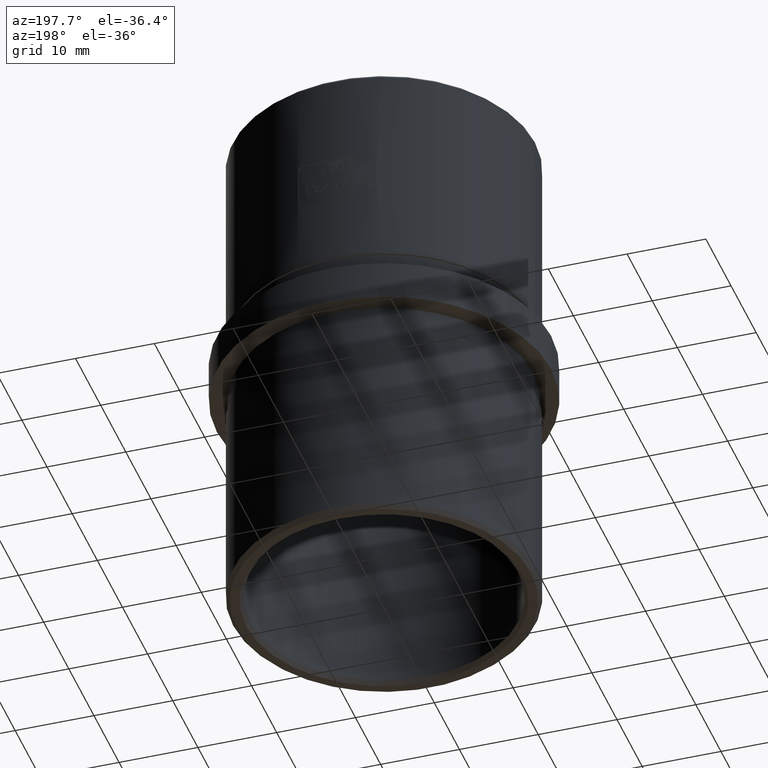
[diagram: clean part render]
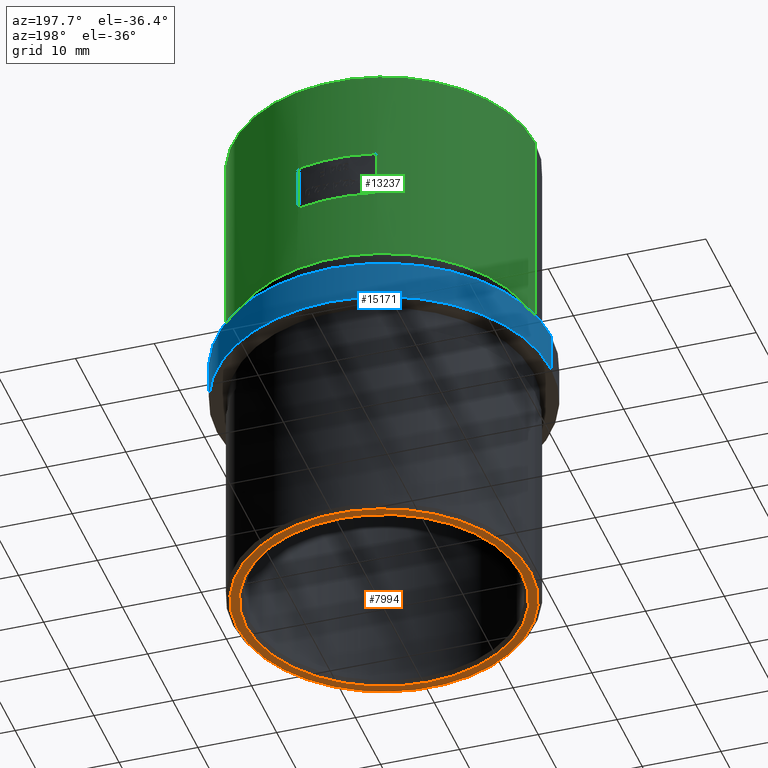
[diagram: same view with three faces highlighted in distinct colors, each labeled with its STEP entity id]
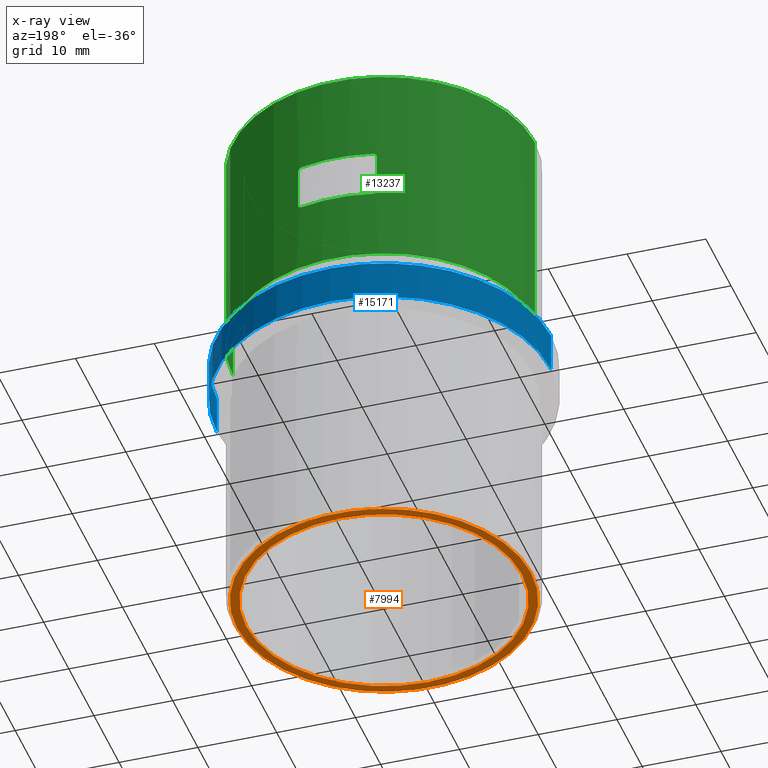
[diagram: x-ray of the same camera — body ghosted, the three highlighted faces saturated]
A machine part, auxiliary view with three faces highlighted in distinct colors.
The next image is the same camera in x-ray (body ghosted, the three faces saturated) — at least one of them is partly hidden behind the body in this view.
Their STEP definitions:

[orange] entity #7994 — the highlighted planar face has unit normal (0, 0, -1).
#163 = AXIS2_PLACEMENT_3D ( 'NONE', #2416, #13437, #15010 ) ;
#888 = CARTESIAN_POINT ( 'NONE',  ( 17.49999999999999600, 2.143131898507867500E-015, -32.50000000000000000 ) ) ;
#1364 = EDGE_CURVE ( 'NONE', #19655, #13010, #20067, .T. ) ;
#2416 = CARTESIAN_POINT ( 'NONE',  ( 0.0000000000000000000, 0.0000000000000000000, -32.50000000000000000 ) ) ;
#2832 = ORIENTED_EDGE ( 'NONE', *, *, #16695, .T. ) ;
#3154 = VERTEX_POINT ( 'NONE', #9685 ) ;
#3708 = DIRECTION ( 'NONE',  ( -0.0000000000000000000, -0.0000000000000000000, 1.000000000000000000 ) ) ;
#4027 = DIRECTION ( 'NONE',  ( -1.000000000000000000, 0.0000000000000000000, 0.0000000000000000000 ) ) ;
#4387 = CARTESIAN_POINT ( 'NONE',  ( 18.64999999999999900, 0.0000000000000000000, -32.50000000000000000 ) ) ;
#4685 = CIRCLE ( 'NONE', #6483, 17.49999999999999600 ) ;
#5186 = CARTESIAN_POINT ( 'NONE',  ( 0.0000000000000000000, 0.0000000000000000000, -32.50000000000000000 ) ) ;
#5858 = AXIS2_PLACEMENT_3D ( 'NONE', #5186, #19386, #19318 ) ;
#6100 = DIRECTION ( 'NONE',  ( -0.0000000000000000000, -0.0000000000000000000, 1.000000000000000000 ) ) ;
#6127 = DIRECTION ( 'NONE',  ( 1.000000000000000000, 0.0000000000000000000, 0.0000000000000000000 ) ) ;
#6483 = AXIS2_PLACEMENT_3D ( 'NONE', #14726, #3708, #10012 ) ;
#7459 = FACE_OUTER_BOUND ( 'NONE', #14191, .T. ) ;
#7624 = VERTEX_POINT ( 'NONE', #888 ) ;
#7994 = ADVANCED_FACE ( 'NONE', ( #7459, #17001 ), #18478, .T. ) ;
#8927 = EDGE_LOOP ( 'NONE', ( #18075, #14172 ) ) ;
#9277 = AXIS2_PLACEMENT_3D ( 'NONE', #15485, #6100, #4027 ) ;
#9685 = CARTESIAN_POINT ( 'NONE',  ( -17.49999999999999600, 0.0000000000000000000, -32.50000000000000000 ) ) ;
#10012 = DIRECTION ( 'NONE',  ( -1.000000000000000000, 0.0000000000000000000, 0.0000000000000000000 ) ) ;
#11045 = ORIENTED_EDGE ( 'NONE', *, *, #1364, .T. ) ;
#13010 = VERTEX_POINT ( 'NONE', #19532 ) ;
#13437 = DIRECTION ( 'NONE',  ( 0.0000000000000000000, 0.0000000000000000000, -1.000000000000000000 ) ) ;
#13871 = DIRECTION ( 'NONE',  ( 0.0000000000000000000, 0.0000000000000000000, -1.000000000000000000 ) ) ;
#13943 = CARTESIAN_POINT ( 'NONE',  ( 0.0000000000000000000, 0.0000000000000000000, -32.50000000000000000 ) ) ;
#14051 = EDGE_CURVE ( 'NONE', #3154, #7624, #4685, .T. ) ;
#14172 = ORIENTED_EDGE ( 'NONE', *, *, #18799, .T. ) ;
#14191 = EDGE_LOOP ( 'NONE', ( #11045, #2832 ) ) ;
#14726 = CARTESIAN_POINT ( 'NONE',  ( 0.0000000000000000000, 0.0000000000000000000, -32.50000000000000000 ) ) ;
#14827 = CIRCLE ( 'NONE', #9277, 17.49999999999999600 ) ;
#15010 = DIRECTION ( 'NONE',  ( -1.000000000000000000, 0.0000000000000000000, 0.0000000000000000000 ) ) ;
#15485 = CARTESIAN_POINT ( 'NONE',  ( 0.0000000000000000000, 0.0000000000000000000, -32.50000000000000000 ) ) ;
#16695 = EDGE_CURVE ( 'NONE', #13010, #19655, #17216, .T. ) ;
#17001 = FACE_BOUND ( 'NONE', #8927, .T. ) ;
#17216 = CIRCLE ( 'NONE', #5858, 18.64999999999999900 ) ;
#18075 = ORIENTED_EDGE ( 'NONE', *, *, #14051, .T. ) ;
#18478 = PLANE ( 'NONE',  #18577 ) ;
#18577 = AXIS2_PLACEMENT_3D ( 'NONE', #13943, #13871, #6127 ) ;
#18799 = EDGE_CURVE ( 'NONE', #7624, #3154, #14827, .T. ) ;
#19318 = DIRECTION ( 'NONE',  ( -1.000000000000000000, 0.0000000000000000000, 0.0000000000000000000 ) ) ;
#19386 = DIRECTION ( 'NONE',  ( 0.0000000000000000000, 0.0000000000000000000, -1.000000000000000000 ) ) ;
#19532 = CARTESIAN_POINT ( 'NONE',  ( -18.64999999999999900, 2.314582450388497600E-015, -32.50000000000000000 ) ) ;
#19655 = VERTEX_POINT ( 'NONE', #4387 ) ;
#20067 = CIRCLE ( 'NONE', #163, 18.64999999999999900 ) ;

[blue] entity #15171 — the highlighted cylindrical surface (partial cylindrical patch) has radius 21.2 mm, axis along (-0, -0, -1).
#1412 = EDGE_CURVE ( 'NONE', #4165, #16879, #7139, .T. ) ;
#1602 = CIRCLE ( 'NONE', #4973, 21.19999999999999900 ) ;
#1772 = DIRECTION ( 'NONE',  ( -0.0000000000000000000, -0.0000000000000000000, -1.000000000000000000 ) ) ;
#1822 = VECTOR ( 'NONE', #8139, 1000.000000000000000 ) ;
#1911 = CARTESIAN_POINT ( 'NONE',  ( -21.19999999999999900, 0.0000000000000000000, 2.500000000000000000 ) ) ;
#2242 = CARTESIAN_POINT ( 'NONE',  ( 21.19999999999999900, 2.596251214192388800E-015, -2.500000000000000000 ) ) ;
#3396 = DIRECTION ( 'NONE',  ( -1.000000000000000000, 0.0000000000000000000, 0.0000000000000000000 ) ) ;
#4079 = ORIENTED_EDGE ( 'NONE', *, *, #1412, .F. ) ;
#4165 = VERTEX_POINT ( 'NONE', #17107 ) ;
#4546 = CYLINDRICAL_SURFACE ( 'NONE', #5442, 21.19999999999999900 ) ;
#4605 = DIRECTION ( 'NONE',  ( 1.000000000000000000, 0.0000000000000000000, 0.0000000000000000000 ) ) ;
#4973 = AXIS2_PLACEMENT_3D ( 'NONE', #11043, #10980, #4605 ) ;
#5442 = AXIS2_PLACEMENT_3D ( 'NONE', #9905, #13052, #3396 ) ;
#6554 = CARTESIAN_POINT ( 'NONE',  ( 21.19999999999999900, 2.596251214192388800E-015, 2.500000000000000000 ) ) ;
#7139 = CIRCLE ( 'NONE', #18580, 21.19999999999999900 ) ;
#7718 = EDGE_LOOP ( 'NONE', ( #4079, #18522, #14158, #15644 ) ) ;
#8139 = DIRECTION ( 'NONE',  ( -0.0000000000000000000, -0.0000000000000000000, -1.000000000000000000 ) ) ;
#8610 = EDGE_CURVE ( 'NONE', #19201, #14428, #1602, .T. ) ;
#8638 = DIRECTION ( 'NONE',  ( 1.000000000000000000, 0.0000000000000000000, 0.0000000000000000000 ) ) ;
#9760 = CARTESIAN_POINT ( 'NONE',  ( -21.19999999999999900, 0.0000000000000000000, -2.500000000000000000 ) ) ;
#9793 = EDGE_CURVE ( 'NONE', #4165, #19201, #14534, .T. ) ;
#9905 = CARTESIAN_POINT ( 'NONE',  ( 0.0000000000000000000, 0.0000000000000000000, 2.500000000000000000 ) ) ;
#10149 = EDGE_CURVE ( 'NONE', #16879, #14428, #11854, .T. ) ;
#10980 = DIRECTION ( 'NONE',  ( -0.0000000000000000000, -0.0000000000000000000, 1.000000000000000000 ) ) ;
#11043 = CARTESIAN_POINT ( 'NONE',  ( 0.0000000000000000000, 0.0000000000000000000, -2.500000000000000000 ) ) ;
#11854 = LINE ( 'NONE', #1911, #16015 ) ;
#13052 = DIRECTION ( 'NONE',  ( -0.0000000000000000000, -0.0000000000000000000, -1.000000000000000000 ) ) ;
#14158 = ORIENTED_EDGE ( 'NONE', *, *, #8610, .T. ) ;
#14428 = VERTEX_POINT ( 'NONE', #9760 ) ;
#14534 = LINE ( 'NONE', #6554, #1822 ) ;
#14719 = CARTESIAN_POINT ( 'NONE',  ( 0.0000000000000000000, 0.0000000000000000000, 2.500000000000000000 ) ) ;
#15171 = ADVANCED_FACE ( 'NONE', ( #17959 ), #4546, .T. ) ;
#15644 = ORIENTED_EDGE ( 'NONE', *, *, #10149, .F. ) ;
#16015 = VECTOR ( 'NONE', #1772, 1000.000000000000000 ) ;
#16281 = DIRECTION ( 'NONE',  ( 0.0000000000000000000, 0.0000000000000000000, 1.000000000000000000 ) ) ;
#16879 = VERTEX_POINT ( 'NONE', #17934 ) ;
#17107 = CARTESIAN_POINT ( 'NONE',  ( 21.19999999999999900, 2.596251214192388800E-015, 2.500000000000000000 ) ) ;
#17934 = CARTESIAN_POINT ( 'NONE',  ( -21.19999999999999900, 0.0000000000000000000, 2.500000000000000000 ) ) ;
#17959 = FACE_OUTER_BOUND ( 'NONE', #7718, .T. ) ;
#18522 = ORIENTED_EDGE ( 'NONE', *, *, #9793, .T. ) ;
#18580 = AXIS2_PLACEMENT_3D ( 'NONE', #14719, #16281, #8638 ) ;
#19201 = VERTEX_POINT ( 'NONE', #2242 ) ;

[green] entity #13237 — the highlighted cylindrical surface (partial cylindrical patch) has radius 19.15 mm, axis along (-0, -0, -1).
#148 = DIRECTION ( 'NONE',  ( -1.000000000000000000, 0.0000000000000000000, 0.0000000000000000000 ) ) ;
#275 = ORIENTED_EDGE ( 'NONE', *, *, #6885, .F. ) ;
#463 = CARTESIAN_POINT ( 'NONE',  ( 4.943769125031052700, 18.50110488792694200, 14.73525386487789000 ) ) ;
#471 = EDGE_CURVE ( 'NONE', #16317, #7748, #2617, .T. ) ;
#1024 = DIRECTION ( 'NONE',  ( 1.000000000000000000, 0.0000000000000000000, 0.0000000000000000000 ) ) ;
#1039 = CARTESIAN_POINT ( 'NONE',  ( 4.758373441585222400, 18.54965117887660900, 20.44741389043339600 ) ) ;
#1060 = CARTESIAN_POINT ( 'NONE',  ( 0.0000000000000000000, 0.0000000000000000000, 14.49999999999999800 ) ) ;
#1239 = CARTESIAN_POINT ( 'NONE',  ( 4.943714205997238800, 18.50111798019252500, 20.26467664813046800 ) ) ;
#1447 = VERTEX_POINT ( 'NONE', #3700 ) ;
#1495 = CARTESIAN_POINT ( 'NONE',  ( 5.000000000000003600, 18.48573774562433100, 32.50000000000000000 ) ) ;
#1658 = LINE ( 'NONE', #9502, #15364 ) ;
#1858 = CARTESIAN_POINT ( 'NONE',  ( -4.999999999999996400, 18.48573774562433100, 20.00000000000000000 ) ) ;
#2062 = CARTESIAN_POINT ( 'NONE',  ( 4.500000000000001800, 18.61377178327918000, 20.50000000000000400 ) ) ;
#2388 = CARTESIAN_POINT ( 'NONE',  ( -4.943714205997236100, 18.50111798019252900, 14.73532335186953700 ) ) ;
#2578 = DIRECTION ( 'NONE',  ( 1.000000000000000000, 0.0000000000000000000, 0.0000000000000000000 ) ) ;
#2617 = B_SPLINE_CURVE_WITH_KNOTS ( 'NONE', 3,
 ( #16703, #18327, #1239, #1039, #16839, #11942 ),
 .UNSPECIFIED., .F., .F.,
 ( 4, 2, 4 ),
 ( 0.0000000000000000000, 0.0003967691644226426500, 0.0007935383288452853000 ),
 .UNSPECIFIED. ) ;
#3419 = EDGE_CURVE ( 'NONE', #9981, #5258, #5894, .T. ) ;
#3431 = CARTESIAN_POINT ( 'NONE',  ( 4.630394566729750100, 18.58224805143612500, 14.50000000000000000 ) ) ;
#3502 = CARTESIAN_POINT ( 'NONE',  ( 5.000000000000003600, 18.48573774562433100, 15.00000000000000000 ) ) ;
#3602 = CARTESIAN_POINT ( 'NONE',  ( -4.943769125031051800, 18.50110488792694600, 20.26474613512211300 ) ) ;
#3650 = ORIENTED_EDGE ( 'NONE', *, *, #471, .T. ) ;
#3700 = CARTESIAN_POINT ( 'NONE',  ( -4.999999999999996400, 18.48573774562433100, 15.00000000000000000 ) ) ;
#3765 = CARTESIAN_POINT ( 'NONE',  ( -4.630323362391732400, 18.58226526554645400, 14.50000000000000400 ) ) ;
#3924 = EDGE_CURVE ( 'NONE', #12175, #5818, #13215, .T. ) ;
#4088 = DIRECTION ( 'NONE',  ( -0.0000000000000000000, 0.0000000000000000000, 1.000000000000000000 ) ) ;
#4275 = CIRCLE ( 'NONE', #12339, 19.15000000000000200 ) ;
#4922 = EDGE_CURVE ( 'NONE', #20192, #1447, #13916, .T. ) ;
#4936 = FACE_BOUND ( 'NONE', #14746, .T. ) ;
#4991 = CARTESIAN_POINT ( 'NONE',  ( 4.757837220126654100, 18.54979030130697000, 14.55218137565496400 ) ) ;
#5024 = CARTESIAN_POINT ( 'NONE',  ( -4.499999999999998200, 18.61377178327918000, 20.50000000000000400 ) ) ;
#5078 = CARTESIAN_POINT ( 'NONE',  ( -19.15000000000000200, 0.0000000000000000000, 32.00000000000002100 ) ) ;
#5258 = VERTEX_POINT ( 'NONE', #6126 ) ;
#5447 = CARTESIAN_POINT ( 'NONE',  ( 0.0000000000000000000, 0.0000000000000000000, 32.00000000000002100 ) ) ;
#5576 = DIRECTION ( 'NONE',  ( 0.0000000000000000000, 0.0000000000000000000, -1.000000000000000000 ) ) ;
#5676 = DIRECTION ( 'NONE',  ( -0.0000000000000000000, -0.0000000000000000000, -1.000000000000000000 ) ) ;
#5818 = VERTEX_POINT ( 'NONE', #8770 ) ;
#5873 = EDGE_CURVE ( 'NONE', #5818, #16500, #1658, .T. ) ;
#5894 = B_SPLINE_CURVE_WITH_KNOTS ( 'NONE', 3,
 ( #8291, #3431, #4991, #463, #11375, #3502 ),
 .UNSPECIFIED., .F., .F.,
 ( 4, 2, 4 ),
 ( 0.0000000000000000000, 0.0003967751096775154800, 0.0007935502193550309600 ),
 .UNSPECIFIED. ) ;
#6126 = CARTESIAN_POINT ( 'NONE',  ( 5.000000000000003600, 18.48573774562433100, 15.00000000000000000 ) ) ;
#6351 = DIRECTION ( 'NONE',  ( -0.0000000000000000000, -0.0000000000000000000, -1.000000000000000000 ) ) ;
#6527 = ORIENTED_EDGE ( 'NONE', *, *, #13232, .T. ) ;
#6675 = CARTESIAN_POINT ( 'NONE',  ( -4.630394566729748400, 18.58224805143612500, 20.50000000000000000 ) ) ;
#6885 = EDGE_CURVE ( 'NONE', #12175, #17836, #19928, .T. ) ;
#7261 = ORIENTED_EDGE ( 'NONE', *, *, #5873, .T. ) ;
#7297 = CARTESIAN_POINT ( 'NONE',  ( 4.500000000000000900, 18.61377178327918000, 14.49999999999999800 ) ) ;
#7638 = CARTESIAN_POINT ( 'NONE',  ( 5.000000000000003600, 18.48573774562433100, 20.00000000000000400 ) ) ;
#7748 = VERTEX_POINT ( 'NONE', #2062 ) ;
#7858 = CARTESIAN_POINT ( 'NONE',  ( 0.0000000000000000000, 0.0000000000000000000, 20.50000000000000400 ) ) ;
#7916 = EDGE_CURVE ( 'NONE', #9981, #16922, #4275, .T. ) ;
#7917 = CARTESIAN_POINT ( 'NONE',  ( 0.0000000000000000000, 0.0000000000000000000, 32.50000000000000000 ) ) ;
#8263 = DIRECTION ( 'NONE',  ( -0.0000000000000000000, -0.0000000000000000000, -1.000000000000000000 ) ) ;
#8291 = CARTESIAN_POINT ( 'NONE',  ( 4.500000000000000900, 18.61377178327918000, 14.49999999999999800 ) ) ;
#8452 = ORIENTED_EDGE ( 'NONE', *, *, #11627, .T. ) ;
#8603 = CARTESIAN_POINT ( 'NONE',  ( -4.999999999999996400, 18.48573774562433100, 20.00000000000000000 ) ) ;
#8770 = CARTESIAN_POINT ( 'NONE',  ( 19.15000000000000200, 2.345198620367181800E-015, 32.00000000000002100 ) ) ;
#9485 = DIRECTION ( 'NONE',  ( -0.0000000000000000000, -0.0000000000000000000, -1.000000000000000000 ) ) ;
#9502 = CARTESIAN_POINT ( 'NONE',  ( 19.15000000000000200, 2.345198620367181800E-015, 32.50000000000000000 ) ) ;
#9981 = VERTEX_POINT ( 'NONE', #7297 ) ;
#10139 = CARTESIAN_POINT ( 'NONE',  ( -4.758373441585217000, 18.54965117887661200, 14.55258610956660300 ) ) ;
#10240 = ORIENTED_EDGE ( 'NONE', *, *, #13704, .F. ) ;
#10298 = CARTESIAN_POINT ( 'NONE',  ( 0.0000000000000000000, 0.0000000000000000000, 5.500000000000000000 ) ) ;
#10366 = DIRECTION ( 'NONE',  ( 0.0000000000000000000, 0.0000000000000000000, 1.000000000000000000 ) ) ;
#10449 = AXIS2_PLACEMENT_3D ( 'NONE', #7858, #18622, #18755 ) ;
#10896 = CARTESIAN_POINT ( 'NONE',  ( 19.15000000000000200, 2.345198620367181800E-015, 5.500000000000000000 ) ) ;
#11375 = CARTESIAN_POINT ( 'NONE',  ( 5.000000000000268200, 18.48573774562445500, 14.86572756846377200 ) ) ;
#11391 = VERTEX_POINT ( 'NONE', #16051 ) ;
#11399 = ORIENTED_EDGE ( 'NONE', *, *, #3924, .T. ) ;
#11406 = CARTESIAN_POINT ( 'NONE',  ( -4.757837220126653200, 18.54979030130697400, 20.44781862434503600 ) ) ;
#11492 = AXIS2_PLACEMENT_3D ( 'NONE', #7917, #9485, #148 ) ;
#11608 = CARTESIAN_POINT ( 'NONE',  ( -5.000000000000265600, 18.48573774562445500, 20.13427243153623200 ) ) ;
#11627 = EDGE_CURVE ( 'NONE', #1447, #16922, #14080, .T. ) ;
#11638 = AXIS2_PLACEMENT_3D ( 'NONE', #5447, #5576, #16577 ) ;
#11942 = CARTESIAN_POINT ( 'NONE',  ( 4.500000000000001800, 18.61377178327918000, 20.50000000000000400 ) ) ;
#12175 = VERTEX_POINT ( 'NONE', #5078 ) ;
#12301 = EDGE_CURVE ( 'NONE', #16500, #17836, #13291, .T. ) ;
#12311 = CARTESIAN_POINT ( 'NONE',  ( -4.499999999999999100, 18.61377178327918000, 14.49999999999999800 ) ) ;
#12339 = AXIS2_PLACEMENT_3D ( 'NONE', #1060, #4088, #2578 ) ;
#12534 = VECTOR ( 'NONE', #16835, 1000.000000000000000 ) ;
#13065 = B_SPLINE_CURVE_WITH_KNOTS ( 'NONE', 3,
 ( #5024, #6675, #11406, #3602, #11608, #8603 ),
 .UNSPECIFIED., .F., .F.,
 ( 4, 2, 4 ),
 ( 8.673617379884035500E-019, 0.0003967751096775160700, 0.0007935502193550312800 ),
 .UNSPECIFIED. ) ;
#13215 = CIRCLE ( 'NONE', #11638, 19.15000000000000200 ) ;
#13232 = EDGE_CURVE ( 'NONE', #7748, #11391, #18858, .T. ) ;
#13237 = ADVANCED_FACE ( 'NONE', ( #4936, #18369 ), #17862, .T. ) ;
#13291 = CIRCLE ( 'NONE', #14334, 19.15000000000000200 ) ;
#13344 = CARTESIAN_POINT ( 'NONE',  ( -4.499999999999999100, 18.61377178327918000, 14.49999999999999800 ) ) ;
#13704 = EDGE_CURVE ( 'NONE', #16317, #5258, #18099, .T. ) ;
#13916 = LINE ( 'NONE', #15052, #15137 ) ;
#14080 = B_SPLINE_CURVE_WITH_KNOTS ( 'NONE', 3,
 ( #16414, #17939, #2388, #10139, #3765, #13344 ),
 .UNSPECIFIED., .F., .F.,
 ( 4, 2, 4 ),
 ( 1.734723475976807100E-018, 0.0003967691644226436300, 0.0007935383288452855200 ),
 .UNSPECIFIED. ) ;
#14334 = AXIS2_PLACEMENT_3D ( 'NONE', #10298, #10366, #1024 ) ;
#14395 = ORIENTED_EDGE ( 'NONE', *, *, #12301, .T. ) ;
#14746 = EDGE_LOOP ( 'NONE', ( #10240, #3650, #6527, #16430, #18567, #8452, #18724, #15928 ) ) ;
#15052 = CARTESIAN_POINT ( 'NONE',  ( -4.999999999999996400, 18.48573774562433100, 32.50000000000000000 ) ) ;
#15137 = VECTOR ( 'NONE', #5676, 1000.000000000000000 ) ;
#15364 = VECTOR ( 'NONE', #6351, 1000.000000000000000 ) ;
#15805 = VECTOR ( 'NONE', #8263, 1000.000000000000000 ) ;
#15928 = ORIENTED_EDGE ( 'NONE', *, *, #3419, .T. ) ;
#15959 = CARTESIAN_POINT ( 'NONE',  ( -19.15000000000000200, 0.0000000000000000000, 5.500000000000000000 ) ) ;
#16051 = CARTESIAN_POINT ( 'NONE',  ( -4.499999999999998200, 18.61377178327918000, 20.50000000000000400 ) ) ;
#16317 = VERTEX_POINT ( 'NONE', #7638 ) ;
#16414 = CARTESIAN_POINT ( 'NONE',  ( -4.999999999999996400, 18.48573774562433100, 15.00000000000000000 ) ) ;
#16430 = ORIENTED_EDGE ( 'NONE', *, *, #17177, .T. ) ;
#16500 = VERTEX_POINT ( 'NONE', #10896 ) ;
#16577 = DIRECTION ( 'NONE',  ( 1.000000000000000000, 0.0000000000000000000, 0.0000000000000000000 ) ) ;
#16703 = CARTESIAN_POINT ( 'NONE',  ( 5.000000000000003600, 18.48573774562433100, 20.00000000000000400 ) ) ;
#16835 = DIRECTION ( 'NONE',  ( -0.0000000000000000000, -0.0000000000000000000, -1.000000000000000000 ) ) ;
#16839 = CARTESIAN_POINT ( 'NONE',  ( 4.630323362391735900, 18.58226526554645700, 20.50000000000000700 ) ) ;
#16922 = VERTEX_POINT ( 'NONE', #12311 ) ;
#17177 = EDGE_CURVE ( 'NONE', #11391, #20192, #13065, .T. ) ;
#17452 = CARTESIAN_POINT ( 'NONE',  ( -19.15000000000000200, 0.0000000000000000000, 32.50000000000000000 ) ) ;
#17836 = VERTEX_POINT ( 'NONE', #15959 ) ;
#17862 = CYLINDRICAL_SURFACE ( 'NONE', #11492, 19.15000000000000200 ) ;
#17932 = EDGE_LOOP ( 'NONE', ( #11399, #7261, #14395, #275 ) ) ;
#17939 = CARTESIAN_POINT ( 'NONE',  ( -4.999999999999999100, 18.48573774562432700, 14.86580852882528500 ) ) ;
#18099 = LINE ( 'NONE', #1495, #12534 ) ;
#18327 = CARTESIAN_POINT ( 'NONE',  ( 5.000000000000002700, 18.48573774562433100, 20.13419147117471700 ) ) ;
#18369 = FACE_OUTER_BOUND ( 'NONE', #17932, .T. ) ;
#18567 = ORIENTED_EDGE ( 'NONE', *, *, #4922, .T. ) ;
#18622 = DIRECTION ( 'NONE',  ( -3.469446951953614200E-016, 0.0000000000000000000, 1.000000000000000000 ) ) ;
#18724 = ORIENTED_EDGE ( 'NONE', *, *, #7916, .F. ) ;
#18755 = DIRECTION ( 'NONE',  ( 1.000000000000000000, 0.0000000000000000000, 3.623443291857560100E-016 ) ) ;
#18858 = CIRCLE ( 'NONE', #10449, 19.15000000000000200 ) ;
#19928 = LINE ( 'NONE', #17452, #15805 ) ;
#20192 = VERTEX_POINT ( 'NONE', #1858 ) ;